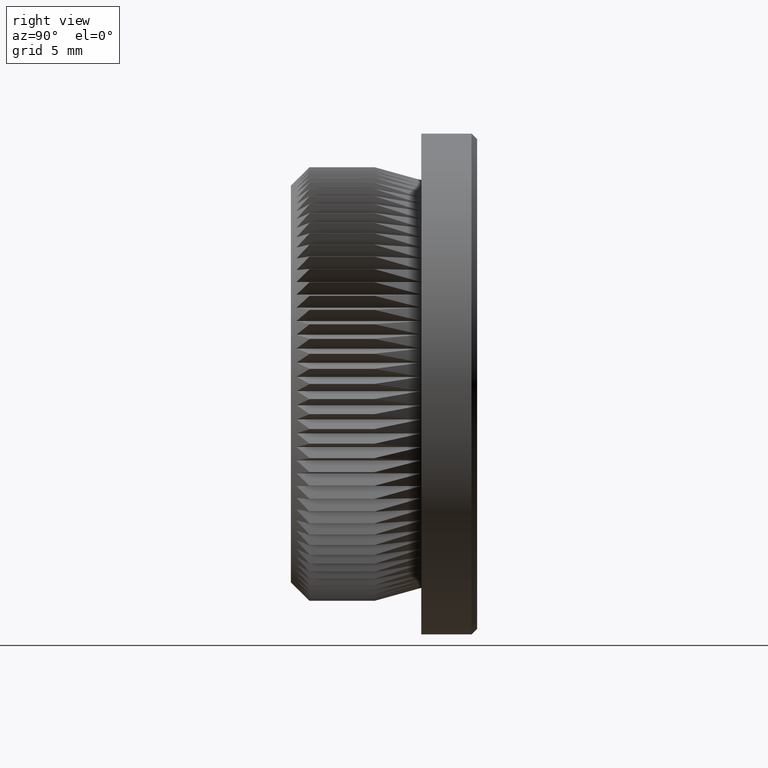
[diagram: clean part render]
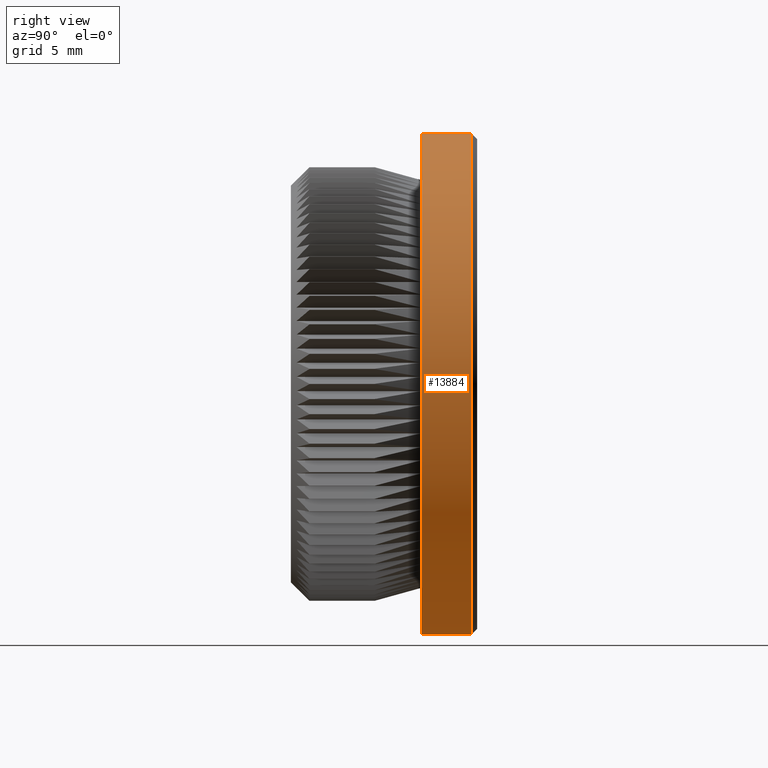
[diagram: same view with one face highlighted and labeled with its STEP entity id]
A machine part, right view. The second image highlights one B-rep face of the part: STEP entity #13884.
In plain terms, the highlighted cylindrical surface (partial cylindrical patch) has radius 13.45 mm, axis along (-0, -1, -0).
Its self-contained STEP definition (entity closure, byte-faithful):
#195 = EDGE_LOOP ( 'NONE', ( #15363, #16769, #2551, #17126 ) ) ;
#549 = CIRCLE ( 'NONE', #4620, 13.44999999999999900 ) ;
#560 = DIRECTION ( 'NONE',  ( -0.0000000000000000000, -1.000000000000000000, -0.0000000000000000000 ) ) ;
#1486 = AXIS2_PLACEMENT_3D ( 'NONE', #16077, #560, #24247 ) ;
#1956 = VERTEX_POINT ( 'NONE', #20541 ) ;
#2551 = ORIENTED_EDGE ( 'NONE', *, *, #14098, .F. ) ;
#2640 = VERTEX_POINT ( 'NONE', #17436 ) ;
#2882 = AXIS2_PLACEMENT_3D ( 'NONE', #6649, #20205, #14298 ) ;
#3818 = CARTESIAN_POINT ( 'NONE',  ( 0.0000000000000000000, 9.700000000000001100, -13.44999999999999900 ) ) ;
#3918 = CYLINDRICAL_SURFACE ( 'NONE', #1486, 13.44999999999999900 ) ;
#4620 = AXIS2_PLACEMENT_3D ( 'NONE', #7298, #21347, #19234 ) ;
#5466 = VERTEX_POINT ( 'NONE', #3818 ) ;
#6649 = CARTESIAN_POINT ( 'NONE',  ( 0.0000000000000000000, 9.700000000000001100, 0.0000000000000000000 ) ) ;
#7298 = CARTESIAN_POINT ( 'NONE',  ( 0.0000000000000000000, 7.000000000000000000, 0.0000000000000000000 ) ) ;
#9692 = EDGE_CURVE ( 'NONE', #2640, #24818, #24837, .T. ) ;
#10753 = VECTOR ( 'NONE', #11272, 1000.000000000000000 ) ;
#11272 = DIRECTION ( 'NONE',  ( -0.0000000000000000000, -1.000000000000000000, -0.0000000000000000000 ) ) ;
#11301 = CARTESIAN_POINT ( 'NONE',  ( 1.647149944853190000E-015, 7.000000000000000000, 13.44999999999999900 ) ) ;
#11554 = CARTESIAN_POINT ( 'NONE',  ( 1.647149944853190000E-015, 0.0000000000000000000, 13.44999999999999900 ) ) ;
#12084 = CIRCLE ( 'NONE', #2882, 13.44999999999999900 ) ;
#13701 = DIRECTION ( 'NONE',  ( -0.0000000000000000000, -1.000000000000000000, -0.0000000000000000000 ) ) ;
#13884 = ADVANCED_FACE ( 'NONE', ( #19870 ), #3918, .T. ) ;
#14098 = EDGE_CURVE ( 'NONE', #1956, #24818, #549, .T. ) ;
#14298 = DIRECTION ( 'NONE',  ( 0.0000000000000000000, 0.0000000000000000000, 1.000000000000000000 ) ) ;
#15363 = ORIENTED_EDGE ( 'NONE', *, *, #20201, .T. ) ;
#15903 = EDGE_CURVE ( 'NONE', #5466, #1956, #20105, .T. ) ;
#15925 = CARTESIAN_POINT ( 'NONE',  ( 0.0000000000000000000, 0.0000000000000000000, -13.44999999999999900 ) ) ;
#16077 = CARTESIAN_POINT ( 'NONE',  ( 0.0000000000000000000, 0.0000000000000000000, 0.0000000000000000000 ) ) ;
#16755 = VECTOR ( 'NONE', #13701, 1000.000000000000000 ) ;
#16769 = ORIENTED_EDGE ( 'NONE', *, *, #9692, .T. ) ;
#17126 = ORIENTED_EDGE ( 'NONE', *, *, #15903, .F. ) ;
#17436 = CARTESIAN_POINT ( 'NONE',  ( 1.647149944853190000E-015, 9.700000000000001100, 13.44999999999999900 ) ) ;
#19234 = DIRECTION ( 'NONE',  ( 0.0000000000000000000, 0.0000000000000000000, -1.000000000000000000 ) ) ;
#19870 = FACE_OUTER_BOUND ( 'NONE', #195, .T. ) ;
#20105 = LINE ( 'NONE', #15925, #16755 ) ;
#20201 = EDGE_CURVE ( 'NONE', #5466, #2640, #12084, .T. ) ;
#20205 = DIRECTION ( 'NONE',  ( -0.0000000000000000000, -1.000000000000000000, -0.0000000000000000000 ) ) ;
#20541 = CARTESIAN_POINT ( 'NONE',  ( 0.0000000000000000000, 7.000000000000000000, -13.44999999999999900 ) ) ;
#21347 = DIRECTION ( 'NONE',  ( -0.0000000000000000000, -1.000000000000000000, -0.0000000000000000000 ) ) ;
#24247 = DIRECTION ( 'NONE',  ( 0.0000000000000000000, 0.0000000000000000000, -1.000000000000000000 ) ) ;
#24818 = VERTEX_POINT ( 'NONE', #11301 ) ;
#24837 = LINE ( 'NONE', #11554, #10753 ) ;